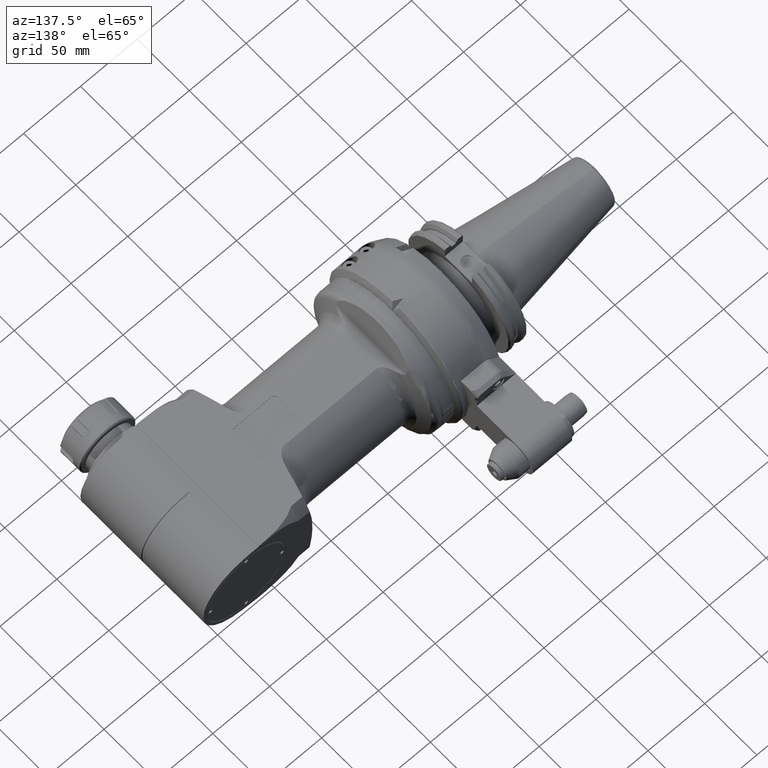
[diagram: clean part render]
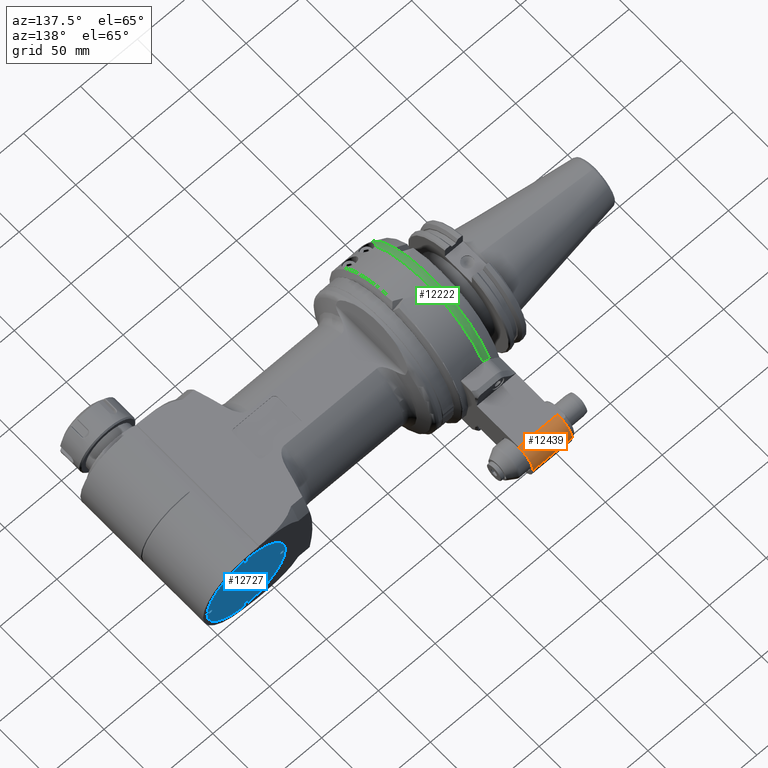
[diagram: same view with three faces highlighted in distinct colors, each labeled with its STEP entity id]
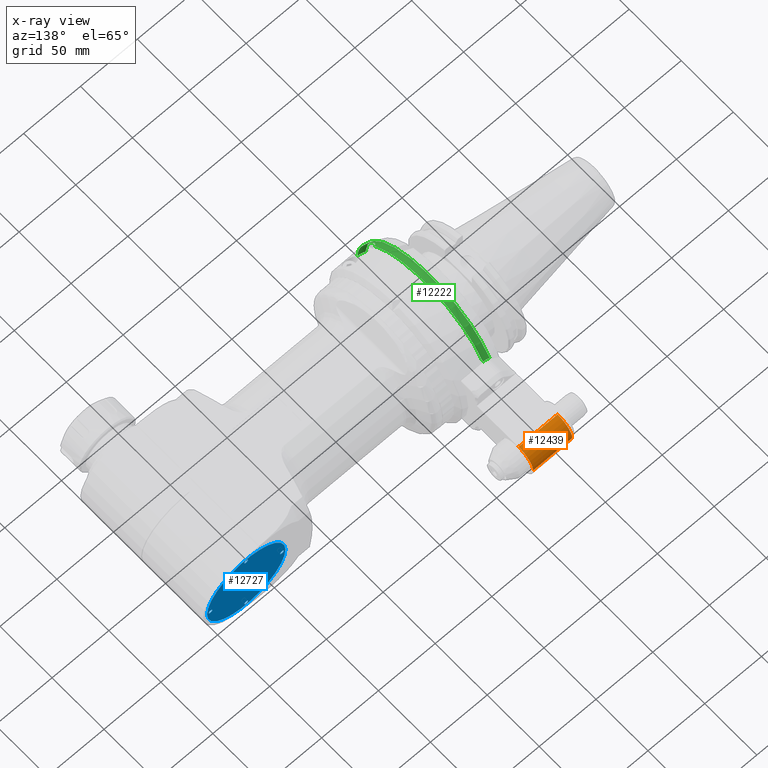
[diagram: x-ray of the same camera — body ghosted, the three highlighted faces saturated]
A machine part, auxiliary view with three faces highlighted in distinct colors.
The next image is the same camera in x-ray (body ghosted, the three faces saturated) — at least one of them is partly hidden behind the body in this view.
Their STEP definitions:

[orange] entity #12439 — the highlighted cylindrical surface (edge-blend (fillet) strip) has radius 14 mm, axis along (-1, 0, 0).
#532=CYLINDRICAL_SURFACE('',#13529,14.);
#974=CIRCLE('',#13474,14.);
#1001=CIRCLE('',#13530,14.);
#1530=FACE_OUTER_BOUND('',#2227,.T.);
#2227=EDGE_LOOP('',(#9328,#9329,#9330,#9331));
#3231=LINE('',#19623,#4179);
#3232=LINE('',#19639,#4180);
#4179=VECTOR('',#15461,34.5);
#4180=VECTOR('',#15470,34.5);
#5230=VERTEX_POINT('',#19458);
#5231=VERTEX_POINT('',#19460);
#5281=VERTEX_POINT('',#19621);
#5283=VERTEX_POINT('',#19638);
#6753=EDGE_CURVE('',#5230,#5231,#974,.T.);
#6825=EDGE_CURVE('',#5230,#5281,#3231,.T.);
#6829=EDGE_CURVE('',#5283,#5231,#3232,.T.);
#6830=EDGE_CURVE('',#5283,#5281,#1001,.T.);
#9328=ORIENTED_EDGE('',*,*,#6829,.T.);
#9329=ORIENTED_EDGE('',*,*,#6753,.F.);
#9330=ORIENTED_EDGE('',*,*,#6825,.T.);
#9331=ORIENTED_EDGE('',*,*,#6830,.F.);
#12439=ADVANCED_FACE('',(#1530),#532,.T.);
#13474=AXIS2_PLACEMENT_3D('',#19461,#15318,#15319);
#13529=AXIS2_PLACEMENT_3D('',#19637,#15468,#15469);
#13530=AXIS2_PLACEMENT_3D('',#19640,#15471,#15472);
#15318=DIRECTION('center_axis',(-1.,0.,0.));
#15319=DIRECTION('ref_axis',(0.,0.,1.));
#15461=DIRECTION('',(1.,0.,0.));
#15468=DIRECTION('center_axis',(-1.,0.,0.));
#15469=DIRECTION('ref_axis',(0.,-1.,0.));
#15470=DIRECTION('',(-1.,0.,0.));
#15471=DIRECTION('center_axis',(1.,0.,0.));
#15472=DIRECTION('ref_axis',(0.,1.,0.));
#19458=CARTESIAN_POINT('',(-51.5,97.25034668789,15.));
#19460=CARTESIAN_POINT('',(-51.5,111.2503466879,1.));
#19461=CARTESIAN_POINT('Origin',(-51.5,97.25034668789,1.));
#19621=CARTESIAN_POINT('',(-17.,97.25034668789,15.));
#19623=CARTESIAN_POINT('',(-51.5,97.25034668789,15.));
#19637=CARTESIAN_POINT('Origin',(-43.,97.25034668789,1.));
#19638=CARTESIAN_POINT('',(-17.,111.2503466879,1.));
#19639=CARTESIAN_POINT('',(-17.,111.2503466879,1.));
#19640=CARTESIAN_POINT('Origin',(-17.,97.25034668789,1.));

[blue] entity #12727 — the highlighted planar face has unit normal (-0, -1, -0).
#755=FACE_BOUND('',#2568,.T.);
#756=FACE_BOUND('',#2569,.T.);
#757=FACE_BOUND('',#2570,.T.);
#758=FACE_BOUND('',#2571,.T.);
#1216=CIRCLE('',#14038,34.5);
#1217=CIRCLE('',#14040,1.6);
#1218=CIRCLE('',#14041,1.6);
#1219=CIRCLE('',#14042,1.6);
#1220=CIRCLE('',#14043,1.6);
#1818=FACE_OUTER_BOUND('',#2567,.T.);
#2567=EDGE_LOOP('',(#10904));
#2568=EDGE_LOOP('',(#10905));
#2569=EDGE_LOOP('',(#10906));
#2570=EDGE_LOOP('',(#10907));
#2571=EDGE_LOOP('',(#10908));
#5898=VERTEX_POINT('',#36130);
#5899=VERTEX_POINT('',#36134);
#5900=VERTEX_POINT('',#36136);
#5901=VERTEX_POINT('',#36138);
#5902=VERTEX_POINT('',#36140);
#7683=EDGE_CURVE('',#5898,#5898,#1216,.T.);
#7684=EDGE_CURVE('',#5899,#5899,#1217,.T.);
#7685=EDGE_CURVE('',#5900,#5900,#1218,.T.);
#7686=EDGE_CURVE('',#5901,#5901,#1219,.T.);
#7687=EDGE_CURVE('',#5902,#5902,#1220,.T.);
#10904=ORIENTED_EDGE('',*,*,#7683,.T.);
#10905=ORIENTED_EDGE('',*,*,#7684,.T.);
#10906=ORIENTED_EDGE('',*,*,#7685,.T.);
#10907=ORIENTED_EDGE('',*,*,#7686,.T.);
#10908=ORIENTED_EDGE('',*,*,#7687,.T.);
#12137=PLANE('',#14039);
#12727=ADVANCED_FACE('',(#1818,#755,#756,#757,#758),#12137,.F.);
#14038=AXIS2_PLACEMENT_3D('',#36132,#16953,#16954);
#14039=AXIS2_PLACEMENT_3D('',#36133,#16955,#16956);
#14040=AXIS2_PLACEMENT_3D('',#36135,#16957,#16958);
#14041=AXIS2_PLACEMENT_3D('',#36137,#16959,#16960);
#14042=AXIS2_PLACEMENT_3D('',#36139,#16961,#16962);
#14043=AXIS2_PLACEMENT_3D('',#36141,#16963,#16964);
#16953=DIRECTION('center_axis',(0.,1.,0.));
#16954=DIRECTION('ref_axis',(-1.,0.,0.));
#16955=DIRECTION('center_axis',(0.,-1.,0.));
#16956=DIRECTION('ref_axis',(-1.,0.,0.));
#16957=DIRECTION('center_axis',(0.,-1.,0.));
#16958=DIRECTION('ref_axis',(0.,0.,1.));
#16959=DIRECTION('center_axis',(0.,-1.,0.));
#16960=DIRECTION('ref_axis',(0.,0.,1.));
#16961=DIRECTION('center_axis',(0.,-1.,0.));
#16962=DIRECTION('ref_axis',(0.,0.,1.));
#16963=DIRECTION('center_axis',(0.,-1.,0.));
#16964=DIRECTION('ref_axis',(0.,0.,1.));
#36130=CARTESIAN_POINT('',(207.5,59.,4.22503145705837E-15));
#36132=CARTESIAN_POINT('Origin',(173.,59.,0.));
#36133=CARTESIAN_POINT('Origin',(155.5,59.,0.));
#36134=CARTESIAN_POINT('',(141.5,59.,-1.6));
#36135=CARTESIAN_POINT('Origin',(141.5,59.,0.));
#36136=CARTESIAN_POINT('',(173.,59.,29.9));
#36137=CARTESIAN_POINT('Origin',(173.,59.,31.5));
#36138=CARTESIAN_POINT('',(204.5,59.,-1.6));
#36139=CARTESIAN_POINT('Origin',(204.5,59.,0.));
#36140=CARTESIAN_POINT('',(173.,59.,-33.1));
#36141=CARTESIAN_POINT('Origin',(173.,59.,-31.5));

[green] entity #12222 — the highlighted toroidal blend (fillet) surface has major radius 50 mm and minor (blend) radius 14 mm.
#252=B_SPLINE_CURVE_WITH_KNOTS('',3,(#17744,#17745,#17746,#17747,#17748,
#17749,#17750,#17751),.UNSPECIFIED.,.F.,.F.,(4,2,2,4),(3.74052063173177E-10,
0.259141742963151,0.51828348555225,0.578261082118),.UNSPECIFIED.);
#253=B_SPLINE_CURVE_WITH_KNOTS('',3,(#17752,#17753,#17754,#17755,#17756,
#17757,#17758,#17759,#17760,#17761,#17762,#17763,#17764,#17765,#17766,#17767,
#17768,#17769,#17770,#17771),.UNSPECIFIED.,.F.,.F.,(4,2,2,2,2,2,2,2,2,4),
(-5.59126527297257,-5.41145791585134,-5.01941152468785,-4.80611587961615,
-4.65072475116339,-4.50013807334029,-4.30809731119227,-4.00546240609342,
-3.72851748221668,-3.6652591924035),.UNSPECIFIED.);
#254=B_SPLINE_CURVE_WITH_KNOTS('',3,(#17772,#17773,#17774,#17775,#17776,
#17777,#17778,#17779,#17780,#17781,#17782,#17783),.UNSPECIFIED.,.F.,.F.,
(4,2,2,2,2,4),(2.63702911948999,2.66108248925062,2.83501521198956,3.0089479347285,
3.14488622340493,3.28082451208136),.UNSPECIFIED.);
#636=TOROIDAL_SURFACE('',#13098,50.,14.);
#785=CIRCLE('',#13090,64.);
#790=CIRCLE('',#13097,64.);
#791=CIRCLE('',#13099,62.68830901851);
#1313=FACE_OUTER_BOUND('',#1987,.T.);
#1987=EDGE_LOOP('',(#8127,#8128,#8129,#8130,#8131,#8132));
#4849=VERTEX_POINT('',#17682);
#4850=VERTEX_POINT('',#17683);
#4860=VERTEX_POINT('',#17703);
#4861=VERTEX_POINT('',#17705);
#4863=VERTEX_POINT('',#17741);
#4864=VERTEX_POINT('',#17742);
#6196=EDGE_CURVE('',#4849,#4850,#785,.T.);
#6207=EDGE_CURVE('',#4861,#4860,#790,.T.);
#6210=EDGE_CURVE('',#4863,#4864,#791,.T.);
#6211=EDGE_CURVE('',#4849,#4864,#252,.T.);
#6212=EDGE_CURVE('',#4850,#4861,#253,.T.);
#6213=EDGE_CURVE('',#4863,#4860,#254,.T.);
#8127=ORIENTED_EDGE('',*,*,#6210,.T.);
#8128=ORIENTED_EDGE('',*,*,#6211,.F.);
#8129=ORIENTED_EDGE('',*,*,#6196,.T.);
#8130=ORIENTED_EDGE('',*,*,#6212,.T.);
#8131=ORIENTED_EDGE('',*,*,#6207,.T.);
#8132=ORIENTED_EDGE('',*,*,#6213,.F.);
#12222=ADVANCED_FACE('',(#1313),#636,.T.);
#13090=AXIS2_PLACEMENT_3D('',#17684,#14307,#14308);
#13097=AXIS2_PLACEMENT_3D('',#17706,#14325,#14326);
#13098=AXIS2_PLACEMENT_3D('',#17740,#14327,#14328);
#13099=AXIS2_PLACEMENT_3D('',#17743,#14329,#14330);
#14307=DIRECTION('center_axis',(-1.,0.,0.));
#14308=DIRECTION('ref_axis',(0.,-0.999725304124303,0.0234374975961501));
#14325=DIRECTION('center_axis',(-1.,0.,0.));
#14326=DIRECTION('ref_axis',(0.,-0.73678359372379,0.676128638662391));
#14327=DIRECTION('center_axis',(1.,0.,0.));
#14328=DIRECTION('ref_axis',(0.,-1.,0.));
#14329=DIRECTION('center_axis',(1.,0.,0.));
#14330=DIRECTION('ref_axis',(0.,0.905272464491611,0.424831454853905));
#17682=CARTESIAN_POINT('',(-41.6014866639405,-63.9824194641222,1.49999983907449));
#17683=CARTESIAN_POINT('',(-41.6014866602,-56.84585085139,29.40321820789));
#17684=CARTESIAN_POINT('Origin',(-41.6014866602,0.,0.));
#17703=CARTESIAN_POINT('',(-41.6014866602,56.75,29.58779309107));
#17705=CARTESIAN_POINT('',(-41.6014866602,-47.15414999832,43.27223287439));
#17706=CARTESIAN_POINT('Origin',(-41.6014866602,0.,0.));
#17740=CARTESIAN_POINT('Origin',(-41.6014866602,0.,0.));
#17741=CARTESIAN_POINT('',(-47.51814232457,56.75,26.63196552267));
#17742=CARTESIAN_POINT('',(-47.5181471219445,-62.6703582843571,1.49999987294151));
#17743=CARTESIAN_POINT('Origin',(-47.51814232457,0.,0.));
#17744=CARTESIAN_POINT('Ctrl Pts',(-41.6014866639405,-63.9824194639554,
1.499999846154));
#17745=CARTESIAN_POINT('Ctrl Pts',(-42.4652924731296,-63.9824194637245,
1.499999846154));
#17746=CARTESIAN_POINT('Ctrl Pts',(-43.4086778288564,-63.8971792793686,
1.499999846154));
#17747=CARTESIAN_POINT('Ctrl Pts',(-45.2562404915036,-63.5296152390965,
1.499999846154));
#17748=CARTESIAN_POINT('Ctrl Pts',(-46.1604178765697,-63.2472917950132,
1.499999846154));
#17749=CARTESIAN_POINT('Ctrl Pts',(-47.1431553551797,-62.8401665469281,
1.499999846154));
#17750=CARTESIAN_POINT('Ctrl Pts',(-47.3301623109654,-62.7580422337346,
1.499999846154));
#17751=CARTESIAN_POINT('Ctrl Pts',(-47.5181471222447,-62.6703582850007,
1.499999846154));
#17752=CARTESIAN_POINT('Ctrl Pts',(-41.6014866602,-56.8458508513924,29.4032182078978));
#17753=CARTESIAN_POINT('Ctrl Pts',(-41.9911862888434,-56.6366412480986,
29.8076874677397));
#17754=CARTESIAN_POINT('Ctrl Pts',(-42.3375740035932,-56.3902665536014,
30.2382319509171));
#17755=CARTESIAN_POINT('Ctrl Pts',(-43.3024310502795,-55.5380751519606,
31.6473054576882));
#17756=CARTESIAN_POINT('Ctrl Pts',(-43.770414284988,-54.8448245002573,32.6873701866952));
#17757=CARTESIAN_POINT('Ctrl Pts',(-44.2337259916817,-53.7423188278132,
34.2996626593764));
#17758=CARTESIAN_POINT('Ctrl Pts',(-44.3485417436002,-53.3442767276966,
34.8731083441791));
#17759=CARTESIAN_POINT('Ctrl Pts',(-44.4688524468107,-52.6547392186721,
35.8587218657459));
#17760=CARTESIAN_POINT('Ctrl Pts',(-44.4957286556788,-52.3626368646229,
36.2737942403934));
#17761=CARTESIAN_POINT('Ctrl Pts',(-44.5032134607406,-51.7901591659054,
37.0836366470158));
#17762=CARTESIAN_POINT('Ctrl Pts',(-44.4852404588059,-51.5084123929758,
37.4804498332678));
#17763=CARTESIAN_POINT('Ctrl Pts',(-44.3953188325979,-50.8731172064878,
38.3711963323707));
#17764=CARTESIAN_POINT('Ctrl Pts',(-44.3093231937484,-50.5174312980129,
38.8670412330607));
#17765=CARTESIAN_POINT('Ctrl Pts',(-43.9919208099063,-49.6186626233868,
40.1095346246002));
#17766=CARTESIAN_POINT('Ctrl Pts',(-43.6976901262691,-49.0650289431985,
40.8651202961842));
#17767=CARTESIAN_POINT('Ctrl Pts',(-42.908409708413,-48.0838292404525,42.1590532348828));
#17768=CARTESIAN_POINT('Ctrl Pts',(-42.4596197702951,-47.6833955490184,
42.6650846264114));
#17769=CARTESIAN_POINT('Ctrl Pts',(-41.8452714266416,-47.2912004596562,
43.1200976986053));
#17770=CARTESIAN_POINT('Ctrl Pts',(-41.7258897996329,-47.2209356186779,
43.1994559698799));
#17771=CARTESIAN_POINT('Ctrl Pts',(-41.6014866601966,-47.1541499983258,
43.2722328743895));
#17772=CARTESIAN_POINT('Ctrl Pts',(-47.518142324569,56.75,26.6319655226691));
#17773=CARTESIAN_POINT('Ctrl Pts',(-47.4633583909293,56.75,26.6920979999331));
#17774=CARTESIAN_POINT('Ctrl Pts',(-47.408362099652,56.75,26.7512792830639));
#17775=CARTESIAN_POINT('Ctrl Pts',(-46.9543470896005,56.75,27.230246066667));
#17776=CARTESIAN_POINT('Ctrl Pts',(-46.4852763541449,56.75,27.6609227543736));
#17777=CARTESIAN_POINT('Ctrl Pts',(-45.470490188246,56.75,28.4148674900718));
#17778=CARTESIAN_POINT('Ctrl Pts',(-44.9238992154426,56.75,28.736956370035));
#17779=CARTESIAN_POINT('Ctrl Pts',(-43.9811904295736,56.75,29.159081374818));
#17780=CARTESIAN_POINT('Ctrl Pts',(-43.5115651388488,56.75,29.3221098734077));
#17781=CARTESIAN_POINT('Ctrl Pts',(-42.5483332761069,56.75,29.5367181648402));
#17782=CARTESIAN_POINT('Ctrl Pts',(-42.0546142891214,56.75,29.5877930910705));
#17783=CARTESIAN_POINT('Ctrl Pts',(-41.6014866602,56.75,29.5877930910705));